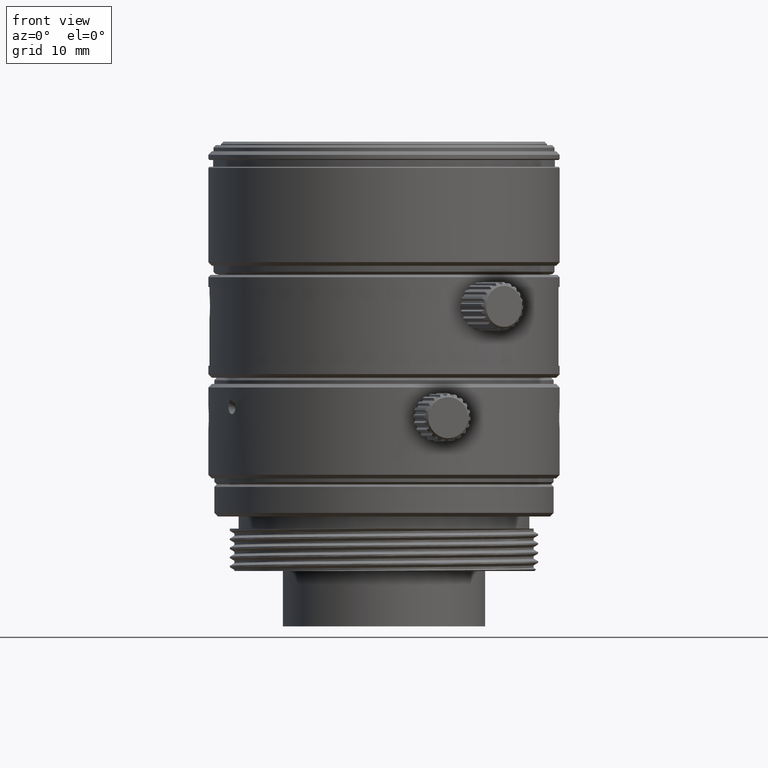
[diagram: clean part render]
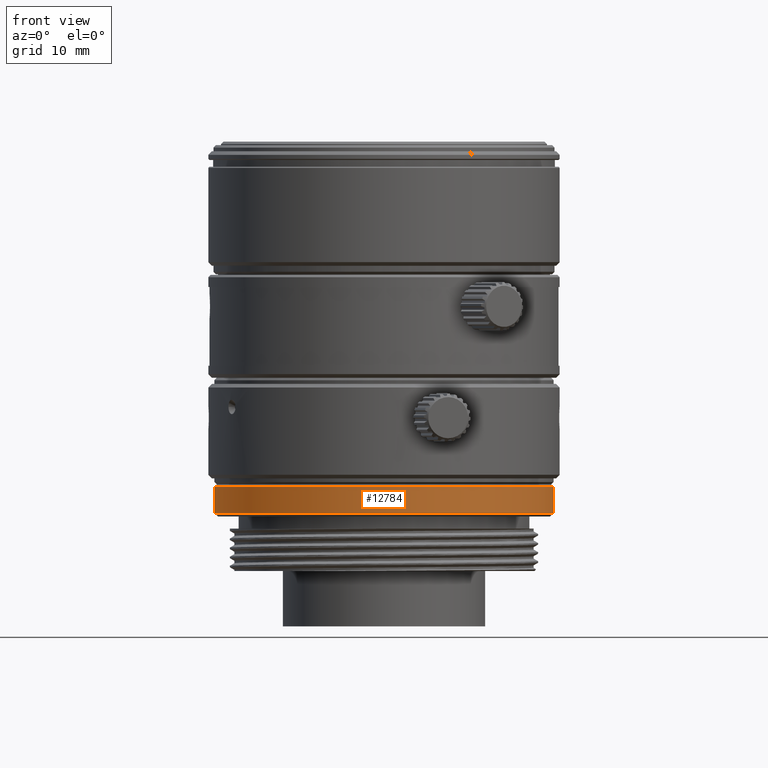
[diagram: same view with one face highlighted and labeled with its STEP entity id]
A machine part, front view. The second image highlights one B-rep face of the part: STEP entity #12784.
In plain terms, the highlighted cylindrical surface (partial cylindrical patch) has radius 14 mm, axis along (0, 0, 1).
Its self-contained STEP definition (entity closure, byte-faithful):
#118 = AXIS2_PLACEMENT_3D ( 'NONE', #37420, #25935, #26121 ) ;
#700 = ORIENTED_EDGE ( 'NONE', *, *, #1835, .F. ) ;
#1835 = EDGE_CURVE ( 'NONE', #34106, #30942, #34365, .T. ) ;
#4813 = ORIENTED_EDGE ( 'NONE', *, *, #28846, .T. ) ;
#7304 = VECTOR ( 'NONE', #31489, 1000.000000000000000 ) ;
#8125 = CIRCLE ( 'NONE', #118, 14.00000727461000061 ) ;
#10459 = DIRECTION ( 'NONE',  ( 0.000000000000000000, 0.000000000000000000, -1.000000000000000000 ) ) ;
#12568 = AXIS2_PLACEMENT_3D ( 'NONE', #25279, #10459, #16627 ) ;
#12784 = ADVANCED_FACE ( 'NONE', ( #17025 ), #14321, .T. ) ;
#13259 = CARTESIAN_POINT ( 'NONE',  ( -14.00000727461000061, 1.714506409689079529E-15, 3.300000012818000261 ) ) ;
#14321 = CYLINDRICAL_SURFACE ( 'NONE', #16538, 14.00000727461000061 ) ;
#16538 = AXIS2_PLACEMENT_3D ( 'NONE', #19913, #31792, #31600 ) ;
#16627 = DIRECTION ( 'NONE',  ( -1.000000000000000000, 0.000000000000000000, 0.000000000000000000 ) ) ;
#17025 = FACE_OUTER_BOUND ( 'NONE', #37339, .T. ) ;
#19795 = CARTESIAN_POINT ( 'NONE',  ( -14.00000727461000061, 1.714506409689079529E-15, -4.559999935076000099 ) ) ;
#19913 = CARTESIAN_POINT ( 'NONE',  ( 0.000000000000000000, 0.000000000000000000, -4.559999935076000099 ) ) ;
#22299 = EDGE_CURVE ( 'NONE', #34106, #34389, #8125, .T. ) ;
#23274 = CARTESIAN_POINT ( 'NONE',  ( 14.00000727461000061, 0.000000000000000000, -4.559999935076000099 ) ) ;
#23430 = CARTESIAN_POINT ( 'NONE',  ( 14.00000727461000061, 0.000000000000000000, 3.300000012818000261 ) ) ;
#24396 = ORIENTED_EDGE ( 'NONE', *, *, #22299, .T. ) ;
#24856 = ORIENTED_EDGE ( 'NONE', *, *, #35035, .T. ) ;
#25279 = CARTESIAN_POINT ( 'NONE',  ( 0.000000000000000000, 0.000000000000000000, 5.450000040593999451 ) ) ;
#25882 = CARTESIAN_POINT ( 'NONE',  ( -14.00000727443151050, 0.000000000000000000, 5.450000040593999451 ) ) ;
#25935 = DIRECTION ( 'NONE',  ( 0.000000000000000000, 0.000000000000000000, 1.000000000000000000 ) ) ;
#26121 = DIRECTION ( 'NONE',  ( -1.000000000000000000, 0.000000000000000000, 0.000000000000000000 ) ) ;
#26352 = LINE ( 'NONE', #23274, #35203 ) ;
#26726 = DIRECTION ( 'NONE',  ( 0.000000000000000000, 0.000000000000000000, 1.000000000000000000 ) ) ;
#27199 = VERTEX_POINT ( 'NONE', #28350 ) ;
#28350 = CARTESIAN_POINT ( 'NONE',  ( 14.00000727443151227, 1.714506409667220982E-15, 5.450000040593999451 ) ) ;
#28846 = EDGE_CURVE ( 'NONE', #34389, #27199, #26352, .T. ) ;
#30451 = CIRCLE ( 'NONE', #12568, 14.00000727461000061 ) ;
#30942 = VERTEX_POINT ( 'NONE', #25882 ) ;
#31489 = DIRECTION ( 'NONE',  ( 0.000000000000000000, 0.000000000000000000, 1.000000000000000000 ) ) ;
#31600 = DIRECTION ( 'NONE',  ( 1.000000000000000000, 0.000000000000000000, 0.000000000000000000 ) ) ;
#31792 = DIRECTION ( 'NONE',  ( 0.000000000000000000, 0.000000000000000000, 1.000000000000000000 ) ) ;
#34106 = VERTEX_POINT ( 'NONE', #13259 ) ;
#34365 = LINE ( 'NONE', #19795, #7304 ) ;
#34389 = VERTEX_POINT ( 'NONE', #23430 ) ;
#35035 = EDGE_CURVE ( 'NONE', #27199, #30942, #30451, .T. ) ;
#35203 = VECTOR ( 'NONE', #26726, 1000.000000000000000 ) ;
#37339 = EDGE_LOOP ( 'NONE', ( #700, #24396, #4813, #24856 ) ) ;
#37420 = CARTESIAN_POINT ( 'NONE',  ( 0.000000000000000000, 0.000000000000000000, 3.300000012818000261 ) ) ;